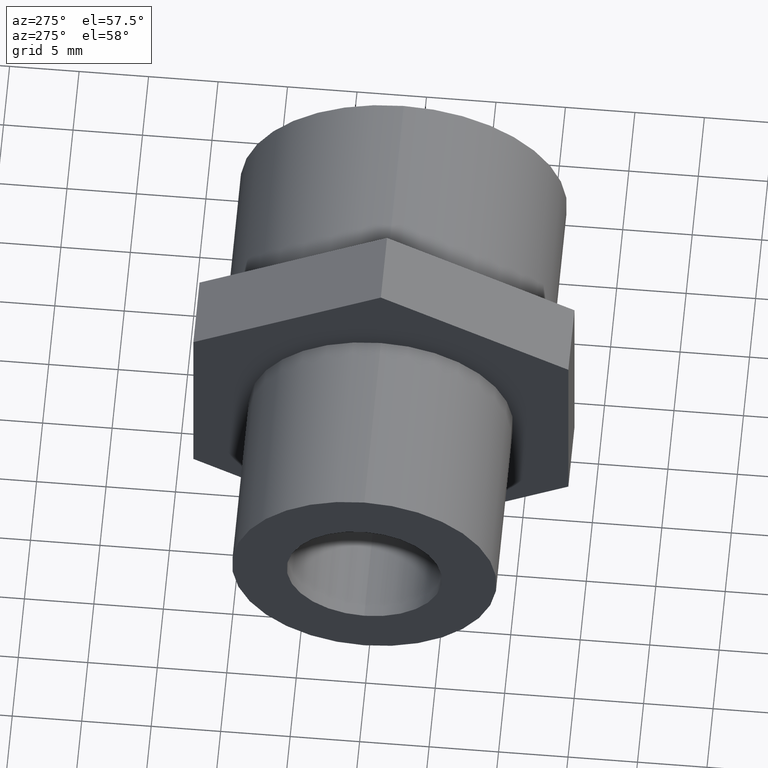
[diagram: clean part render]
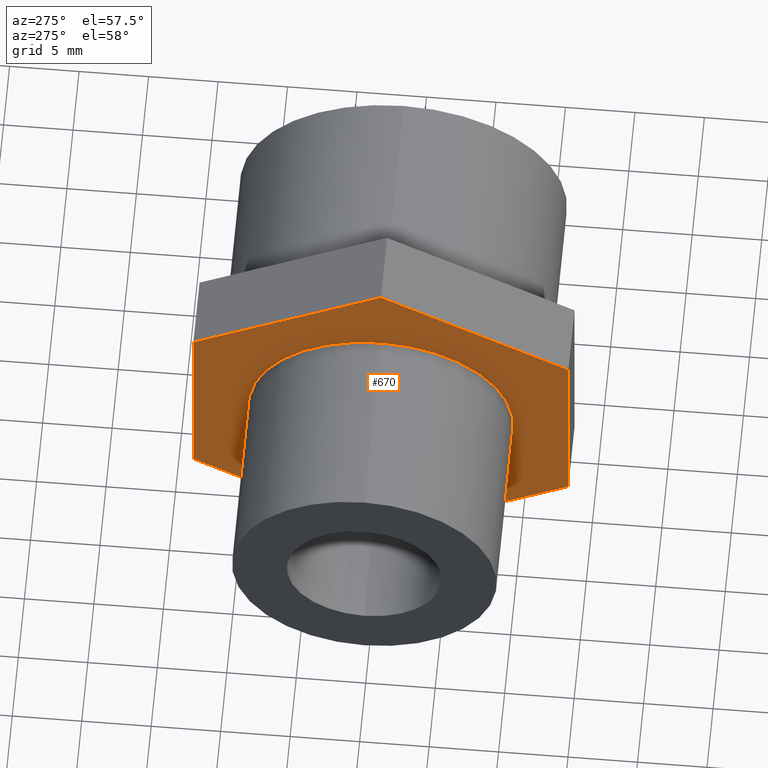
[diagram: same view with one face highlighted and labeled with its STEP entity id]
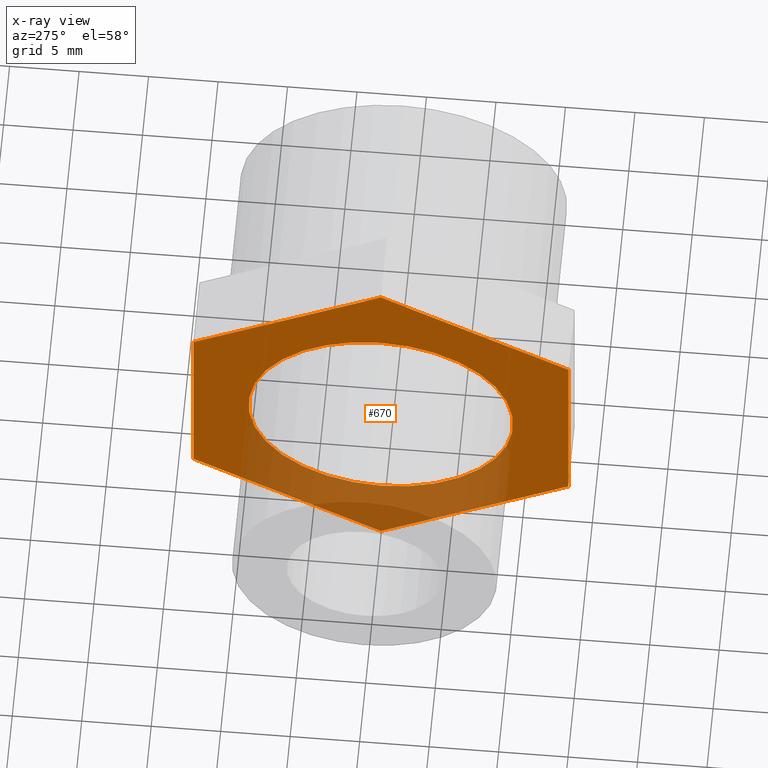
[diagram: x-ray of the same camera — body ghosted, the highlighted face saturated]
A machine part, auxiliary view. The second image highlights one B-rep face of the part: STEP entity #670.
The next image is the same camera in x-ray: the body ghosted, the highlighted face saturated — about 29% of this face is hidden behind the body in this view.
In plain terms, the highlighted planar face has unit normal (1, 0, 0).
Its self-contained STEP definition (entity closure, byte-faithful):
#16 = DIRECTION ( 'NONE',  ( 0.0000000000000000000, 0.8660254037844388200, -0.4999999999999997200 ) ) ;
#22 = VERTEX_POINT ( 'NONE', #413 ) ;
#26 = CARTESIAN_POINT ( 'NONE',  ( -0.1000000000000000200, 0.0000000000000000000, 0.0000000000000000000 ) ) ;
#74 = EDGE_CURVE ( 'NONE', #577, #516, #188, .T. ) ;
#89 = VECTOR ( 'NONE', #541, 39.37007874015748900 ) ;
#94 = DIRECTION ( 'NONE',  ( 0.0000000000000000000, 0.0000000000000000000, -1.000000000000000000 ) ) ;
#97 = LINE ( 'NONE', #137, #669 ) ;
#106 = VECTOR ( 'NONE', #308, 39.37007874015748100 ) ;
#111 = CARTESIAN_POINT ( 'NONE',  ( -0.1000000000000000200, 0.0000000000000000000, -0.3750000000000000600 ) ) ;
#120 = VERTEX_POINT ( 'NONE', #509 ) ;
#121 = CARTESIAN_POINT ( 'NONE',  ( -0.1000000000000000100, -0.5312500000000000000, -0.3067173305069886300 ) ) ;
#137 = CARTESIAN_POINT ( 'NONE',  ( -0.1000000000000000100, 0.5312499999999997800, 0.3067173305069887400 ) ) ;
#141 = CARTESIAN_POINT ( 'NONE',  ( -0.1000000000000000100, 0.5312499999999997800, 0.3067173305069887400 ) ) ;
#165 = EDGE_CURVE ( 'NONE', #386, #22, #564, .T. ) ;
#187 = CIRCLE ( 'NONE', #596, 0.3750000000000000600 ) ;
#188 = LINE ( 'NONE', #367, #588 ) ;
#198 = CARTESIAN_POINT ( 'NONE',  ( -0.1000000000000000100, -7.315936591720330400E-017, 0.6134346610139772600 ) ) ;
#243 = VERTEX_POINT ( 'NONE', #111 ) ;
#248 = EDGE_CURVE ( 'NONE', #243, #259, #187, .T. ) ;
#254 = ORIENTED_EDGE ( 'NONE', *, *, #637, .F. ) ;
#259 = VERTEX_POINT ( 'NONE', #427 ) ;
#262 = EDGE_CURVE ( 'NONE', #516, #120, #97, .T. ) ;
#263 = DIRECTION ( 'NONE',  ( 0.0000000000000000000, -1.113341064372142200E-016, 1.000000000000000000 ) ) ;
#267 = ORIENTED_EDGE ( 'NONE', *, *, #660, .F. ) ;
#272 = CARTESIAN_POINT ( 'NONE',  ( -0.1000000000000000100, -0.5312500000000000000, -0.3067173305069886300 ) ) ;
#283 = EDGE_CURVE ( 'NONE', #120, #297, #565, .T. ) ;
#286 = DIRECTION ( 'NONE',  ( 0.0000000000000000000, -0.8660254037844386000, 0.4999999999999998900 ) ) ;
#297 = VERTEX_POINT ( 'NONE', #304 ) ;
#302 = CARTESIAN_POINT ( 'NONE',  ( -0.1000000000000000100, 1.352032947687220900E-016, -0.6134346610139772600 ) ) ;
#304 = CARTESIAN_POINT ( 'NONE',  ( -0.1000000000000000100, -0.5312500000000000000, 0.3067173305069887400 ) ) ;
#308 = DIRECTION ( 'NONE',  ( 0.0000000000000000000, 0.0000000000000000000, -1.000000000000000000 ) ) ;
#311 = VECTOR ( 'NONE', #358, 39.37007874015748900 ) ;
#320 = FACE_OUTER_BOUND ( 'NONE', #648, .T. ) ;
#332 = ORIENTED_EDGE ( 'NONE', *, *, #262, .F. ) ;
#344 = DIRECTION ( 'NONE',  ( 0.0000000000000000000, 0.0000000000000000000, -1.000000000000000000 ) ) ;
#349 = EDGE_CURVE ( 'NONE', #297, #386, #368, .T. ) ;
#358 = DIRECTION ( 'NONE',  ( 0.0000000000000000000, -0.8660254037844386000, -0.4999999999999998300 ) ) ;
#360 = DIRECTION ( 'NONE',  ( 0.0000000000000000000, 0.0000000000000000000, -1.000000000000000000 ) ) ;
#362 = CIRCLE ( 'NONE', #406, 0.3750000000000000600 ) ;
#366 = ORIENTED_EDGE ( 'NONE', *, *, #248, .F. ) ;
#367 = CARTESIAN_POINT ( 'NONE',  ( -0.1000000000000000100, 0.5312499999999998900, -0.3067173305069886300 ) ) ;
#368 = LINE ( 'NONE', #562, #106 ) ;
#386 = VERTEX_POINT ( 'NONE', #121 ) ;
#387 = DIRECTION ( 'NONE',  ( -1.000000000000000000, -0.0000000000000000000, -0.0000000000000000000 ) ) ;
#390 = CARTESIAN_POINT ( 'NONE',  ( -0.1000000000000000200, 0.0000000000000000000, 0.0000000000000000000 ) ) ;
#403 = DIRECTION ( 'NONE',  ( -1.000000000000000000, -0.0000000000000000000, -0.0000000000000000000 ) ) ;
#406 = AXIS2_PLACEMENT_3D ( 'NONE', #26, #403, #94 ) ;
#413 = CARTESIAN_POINT ( 'NONE',  ( -0.1000000000000000100, 1.352032947687220900E-016, -0.6134346610139772600 ) ) ;
#427 = CARTESIAN_POINT ( 'NONE',  ( -0.1000000000000000200, 4.592425496802575500E-017, 0.3750000000000000600 ) ) ;
#456 = ORIENTED_EDGE ( 'NONE', *, *, #283, .F. ) ;
#466 = FACE_BOUND ( 'NONE', #618, .T. ) ;
#476 = ORIENTED_EDGE ( 'NONE', *, *, #74, .F. ) ;
#479 = LINE ( 'NONE', #302, #89 ) ;
#509 = CARTESIAN_POINT ( 'NONE',  ( -0.1000000000000000100, -1.152752708713805400E-018, 0.6134346610139772600 ) ) ;
#516 = VERTEX_POINT ( 'NONE', #141 ) ;
#535 = CARTESIAN_POINT ( 'NONE',  ( -0.1000000000000000100, 0.5312499999999998900, -0.3067173305069886300 ) ) ;
#541 = DIRECTION ( 'NONE',  ( 0.0000000000000000000, 0.8660254037844386000, 0.5000000000000000000 ) ) ;
#543 = CARTESIAN_POINT ( 'NONE',  ( -0.1000000000000000100, -1.152752708713805400E-018, 0.6134346610139772600 ) ) ;
#545 = PLANE ( 'NONE',  #568 ) ;
#551 = VECTOR ( 'NONE', #16, 39.37007874015748900 ) ;
#554 = ORIENTED_EDGE ( 'NONE', *, *, #165, .F. ) ;
#562 = CARTESIAN_POINT ( 'NONE',  ( -0.1000000000000000100, -0.5312500000000000000, 0.3067173305069887400 ) ) ;
#564 = LINE ( 'NONE', #272, #551 ) ;
#565 = LINE ( 'NONE', #543, #311 ) ;
#568 = AXIS2_PLACEMENT_3D ( 'NONE', #198, #655, #360 ) ;
#577 = VERTEX_POINT ( 'NONE', #535 ) ;
#588 = VECTOR ( 'NONE', #263, 39.37007874015748100 ) ;
#592 = ORIENTED_EDGE ( 'NONE', *, *, #349, .F. ) ;
#596 = AXIS2_PLACEMENT_3D ( 'NONE', #390, #387, #344 ) ;
#618 = EDGE_LOOP ( 'NONE', ( #366, #267 ) ) ;
#637 = EDGE_CURVE ( 'NONE', #22, #577, #479, .T. ) ;
#648 = EDGE_LOOP ( 'NONE', ( #332, #476, #254, #554, #592, #456 ) ) ;
#655 = DIRECTION ( 'NONE',  ( 1.000000000000000000, 0.0000000000000000000, 0.0000000000000000000 ) ) ;
#660 = EDGE_CURVE ( 'NONE', #259, #243, #362, .T. ) ;
#669 = VECTOR ( 'NONE', #286, 39.37007874015748900 ) ;
#670 = ADVANCED_FACE ( 'NONE', ( #320, #466 ), #545, .F. ) ;